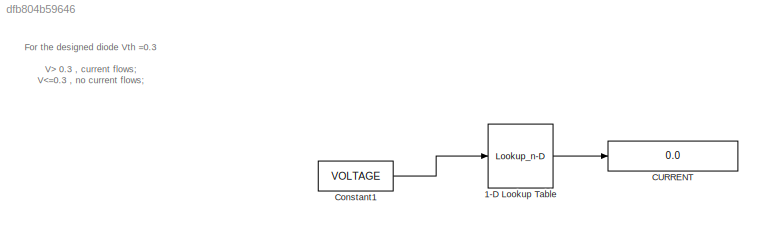
MODEL slx_dfb804b59646
KIND model
CONFIG AbsTol = auto
CONFIG EnableMultiTasking = off
CONFIG FixedStep = auto
CONFIG MaxStep = auto
CONFIG MinStep = auto
CONFIG RelTol = 1e-3
CONFIG SampleTimeConstraint = Unconstrained
CONFIG SolverName = VariableStepAuto
CONFIG StartTime = 0.0
CONFIG StopTime = 10.0
BLOCK [Lookup_n-D] 1-D Lookup Table
  BreakpointsForDimension1 = [-0.06  -0.04 -0.03  -0.01   0  0.01 0.02 0.03 0.04 0.05 0.06 0.07 0.08 0.09 1 ]
  InputPortMap = u0
  InternalRulePriority = Speed
  NumberOfTableDimensions = 1
  Ports = [1, 1]
  RndMeth = Simplest
  Table = [0 0 0 0  0 0 0  0.0 0.3 0.4 0.5 0.6 0.7 0.72  0.74 ]
BLOCK [Display] CURRENT
  Decimation = 1
  Ports = [1]
BLOCK [Constant] Constant1
  Value = VOLTAGE
ANNOTATION (root): For the designed diode Vth =0.3 V> 0.3 , current flows; V<=0.3 , no current flows;
LINE 1-D Lookup Table:1 -> CURRENT:1
LINE Constant1:1 -> 1-D Lookup Table:1
